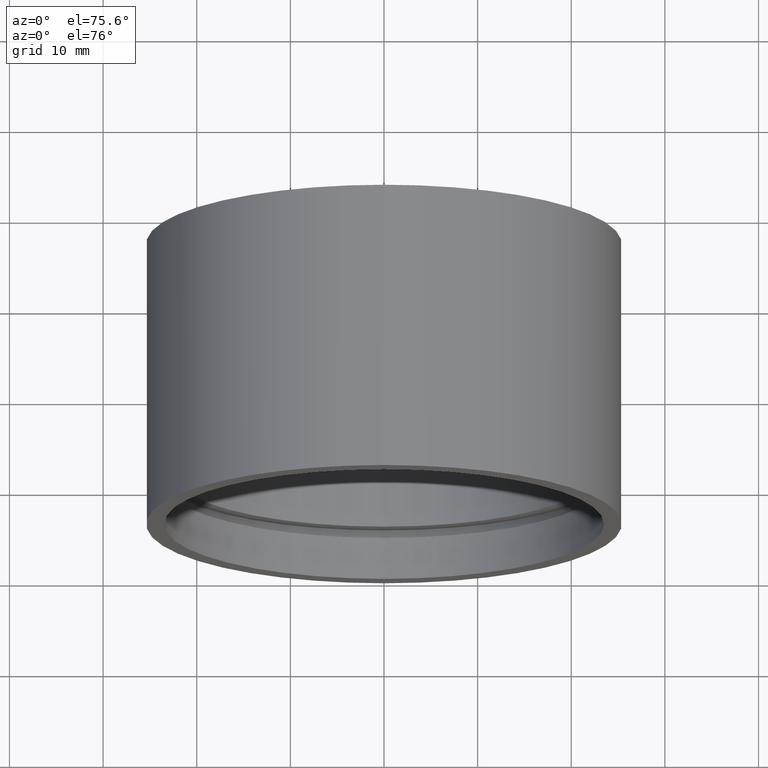
[diagram: clean part render]
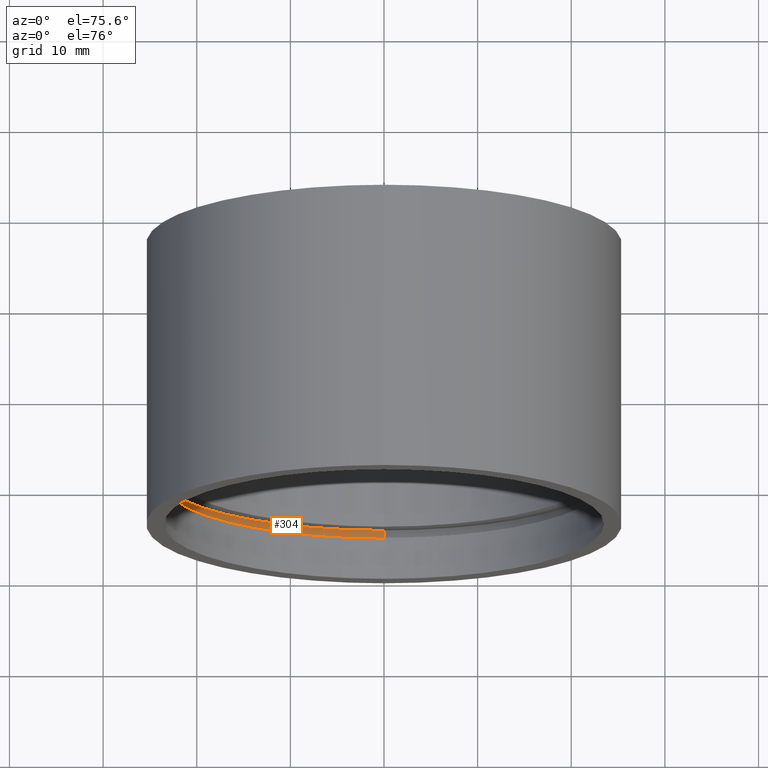
[diagram: same view with one face highlighted and labeled with its STEP entity id]
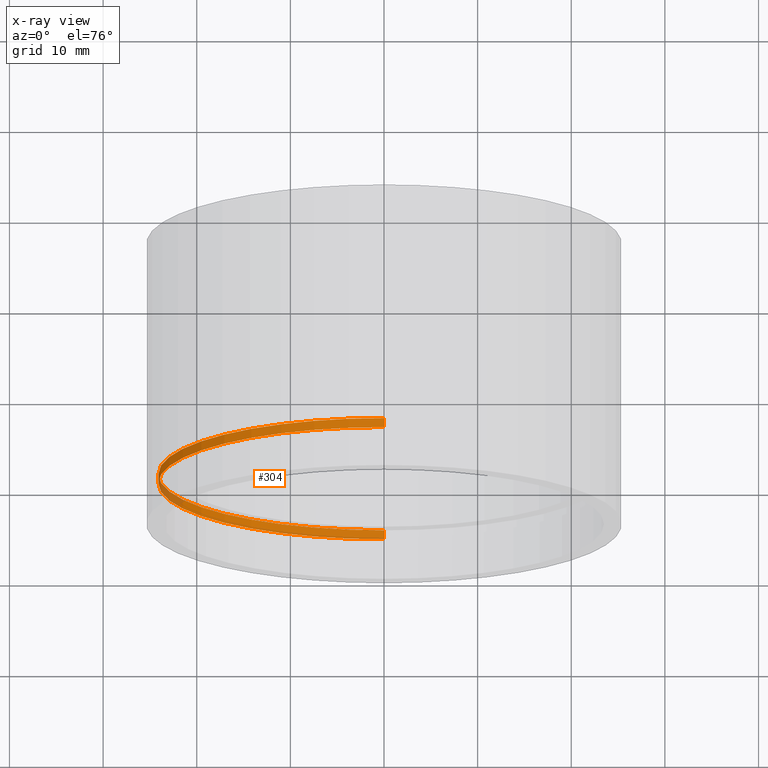
[diagram: x-ray of the same camera — body ghosted, the highlighted face saturated]
A machine part, auxiliary view. The second image highlights one B-rep face of the part: STEP entity #304.
The next image is the same camera in x-ray: the body ghosted, the highlighted face saturated — about 5% of this face is hidden behind the body in this view.
In plain terms, the highlighted cylindrical surface (partial cylindrical patch) has radius 24.1 mm, axis along (-0, 1, -0).
Its self-contained STEP definition (entity closure, byte-faithful):
#22 = DIRECTION ( 'NONE',  ( 0.0000000000000000000, 0.0000000000000000000, 1.000000000000000000 ) ) ;
#38 = VERTEX_POINT ( 'NONE', #84 ) ;
#40 = CARTESIAN_POINT ( 'NONE',  ( 0.0000000000000000000, 161.3761669434274500, 24.10000000000001900 ) ) ;
#42 = DIRECTION ( 'NONE',  ( -0.0000000000000000000, 1.000000000000000000, -0.0000000000000000000 ) ) ;
#44 = EDGE_CURVE ( 'NONE', #133, #38, #294, .T. ) ;
#49 = AXIS2_PLACEMENT_3D ( 'NONE', #135, #609, #149 ) ;
#58 = VERTEX_POINT ( 'NONE', #91 ) ;
#84 = CARTESIAN_POINT ( 'NONE',  ( 0.0000000000000000000, 4.499999999999976000, 24.10000000000001900 ) ) ;
#86 = LINE ( 'NONE', #620, #411 ) ;
#91 = CARTESIAN_POINT ( 'NONE',  ( 0.0000000000000000000, 5.499999999999976900, 24.10000000000001900 ) ) ;
#92 = DIRECTION ( 'NONE',  ( -0.0000000000000000000, 1.000000000000000000, -0.0000000000000000000 ) ) ;
#95 = ORIENTED_EDGE ( 'NONE', *, *, #398, .F. ) ;
#116 = EDGE_CURVE ( 'NONE', #330, #58, #378, .T. ) ;
#133 = VERTEX_POINT ( 'NONE', #448 ) ;
#135 = CARTESIAN_POINT ( 'NONE',  ( 0.0000000000000000000, 4.499999999999976000, 0.0000000000000000000 ) ) ;
#136 = DIRECTION ( 'NONE',  ( 0.0000000000000000000, 0.0000000000000000000, 1.000000000000000000 ) ) ;
#149 = DIRECTION ( 'NONE',  ( 0.0000000000000000000, 0.0000000000000000000, 1.000000000000000000 ) ) ;
#160 = ORIENTED_EDGE ( 'NONE', *, *, #116, .T. ) ;
#225 = ORIENTED_EDGE ( 'NONE', *, *, #44, .F. ) ;
#226 = EDGE_LOOP ( 'NONE', ( #225, #571, #160, #95 ) ) ;
#240 = CARTESIAN_POINT ( 'NONE',  ( 2.951398785945123600E-015, 5.499999999999976900, -24.10000000000001900 ) ) ;
#270 = AXIS2_PLACEMENT_3D ( 'NONE', #416, #434, #22 ) ;
#285 = CYLINDRICAL_SURFACE ( 'NONE', #270, 24.10000000000001900 ) ;
#288 = CARTESIAN_POINT ( 'NONE',  ( 0.0000000000000000000, 5.499999999999976900, 0.0000000000000000000 ) ) ;
#294 = CIRCLE ( 'NONE', #49, 24.10000000000001900 ) ;
#304 = ADVANCED_FACE ( 'NONE', ( #410 ), #285, .F. ) ;
#305 = AXIS2_PLACEMENT_3D ( 'NONE', #288, #426, #136 ) ;
#330 = VERTEX_POINT ( 'NONE', #240 ) ;
#341 = VECTOR ( 'NONE', #42, 1000.000000000000000 ) ;
#378 = CIRCLE ( 'NONE', #305, 24.10000000000001900 ) ;
#385 = EDGE_CURVE ( 'NONE', #133, #330, #86, .T. ) ;
#398 = EDGE_CURVE ( 'NONE', #38, #58, #499, .T. ) ;
#410 = FACE_OUTER_BOUND ( 'NONE', #226, .T. ) ;
#411 = VECTOR ( 'NONE', #92, 1000.000000000000000 ) ;
#416 = CARTESIAN_POINT ( 'NONE',  ( 0.0000000000000000000, 161.3761669434274500, 0.0000000000000000000 ) ) ;
#426 = DIRECTION ( 'NONE',  ( -0.0000000000000000000, 1.000000000000000000, -0.0000000000000000000 ) ) ;
#434 = DIRECTION ( 'NONE',  ( -0.0000000000000000000, 1.000000000000000000, -0.0000000000000000000 ) ) ;
#448 = CARTESIAN_POINT ( 'NONE',  ( 2.951398785945123600E-015, 4.499999999999976000, -24.10000000000001900 ) ) ;
#499 = LINE ( 'NONE', #40, #341 ) ;
#571 = ORIENTED_EDGE ( 'NONE', *, *, #385, .T. ) ;
#609 = DIRECTION ( 'NONE',  ( -0.0000000000000000000, 1.000000000000000000, -0.0000000000000000000 ) ) ;
#620 = CARTESIAN_POINT ( 'NONE',  ( 2.951398785945123600E-015, 161.3761669434274500, -24.10000000000001900 ) ) ;